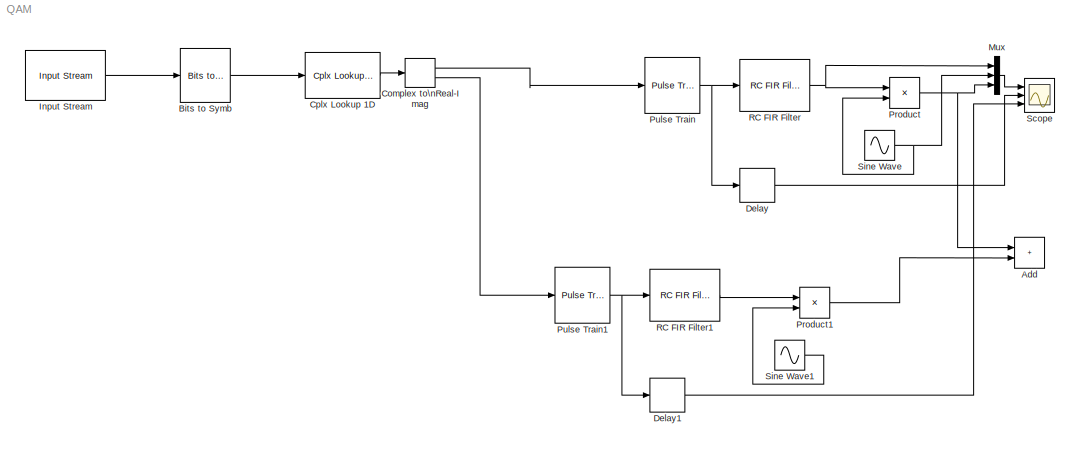
MODEL QAM
KIND model
BLOCK [Sum] Add
  IconShape = rectangular
  Ports = [2, 1]
  SID = 11
BLOCK [Reference] Bits to Symb  REF=dsp_blocks/Conversions/Bits to Symb
  Ports = [1, 1]
  RTWMemSecDataConstants = Inherit from model
  RTWMemSecDataInternal = Inherit from model
  RTWMemSecDataParameters = Inherit from model
  RTWMemSecFuncExecute = Inherit from model
  RTWMemSecFuncInitTerm = Inherit from model
  SID = 12
  SourceBlock = dsp_blocks/Conversions/Bits to Symb
BLOCK [ComplexToRealImag] Complex to\nReal-Imag
  Ports = [1, 2]
  SID = 13
BLOCK [Reference] Cplx Lookup 1D  REF=dsp_blocks/Conversions/Cplx Lookup 1D
  Ports = [1, 1]
  RTWMemSecDataConstants = Inherit from model
  RTWMemSecDataInternal = Inherit from model
  RTWMemSecDataParameters = Inherit from model
  RTWMemSecFuncExecute = Inherit from model
  RTWMemSecFuncInitTerm = Inherit from model
  SID = 14
  SourceBlock = dsp_blocks/Conversions/Cplx Lookup 1D
  table = [1 j -1 -j]
BLOCK [Delay] Delay
  DelayLength = 64
  InputPortMap = u0
  Ports = [1, 1]
  SID = 15
BLOCK [Delay] Delay1
  DelayLength = 64
  InputPortMap = u0
  Ports = [1, 1]
  SID = 16
BLOCK [Reference] Input Stream  REF=dsp_blocks/Sources//Sinks/Input Stream
  Ports = [0, 1]
  RTWMemSecDataConstants = Inherit from model
  RTWMemSecDataInternal = Inherit from model
  RTWMemSecDataParameters = Inherit from model
  RTWMemSecFuncExecute = Inherit from model
  RTWMemSecFuncInitTerm = Inherit from model
  SID = 17
  SourceBlock = dsp_blocks/Sources//Sinks/Input Stream
  fname = rand.mat
  period = 50
  width = 2
BLOCK [Mux] Mux
  DisplayOption = bar
  Inputs = 3
  Ports = [3, 1]
  SID = 18
BLOCK [Product] Product
  Ports = [2, 1]
  SID = 19
BLOCK [Product] Product1
  Ports = [2, 1]
  SID = 20
BLOCK [Reference] Pulse Train  REF=dsp_blocks/Conversions/Pulse Train
  Ports = [1, 1]
  RTWMemSecDataConstants = Inherit from model
  RTWMemSecDataInternal = Inherit from model
  RTWMemSecDataParameters = Inherit from model
  RTWMemSecFuncExecute = Inherit from model
  RTWMemSecFuncInitTerm = Inherit from model
  SID = 21
  SourceBlock = dsp_blocks/Conversions/Pulse Train
  period = 50
BLOCK [Reference] Pulse Train1  REF=dsp_blocks/Conversions/Pulse Train
  Ports = [1, 1]
  RTWMemSecDataConstants = Inherit from model
  RTWMemSecDataInternal = Inherit from model
  RTWMemSecDataParameters = Inherit from model
  RTWMemSecFuncExecute = Inherit from model
  RTWMemSecFuncInitTerm = Inherit from model
  SID = 22
  SourceBlock = dsp_blocks/Conversions/Pulse Train
  period = 50
BLOCK [Reference] RC FIR Filter  REF=dsp_blocks/Filters/RC FIR Filter
  Ports = [1, 1]
  RTWMemSecDataConstants = Inherit from model
  RTWMemSecDataInternal = Inherit from model
  RTWMemSecDataParameters = Inherit from model
  RTWMemSecFuncExecute = Inherit from model
  RTWMemSecFuncInitTerm = Inherit from model
  SID = 23
  SourceBlock = dsp_blocks/Filters/RC FIR Filter
  beta = 0.5
  filt_len = 128
  period = 50
  root = off
  win_type = on
BLOCK [Reference] RC FIR Filter1  REF=dsp_blocks/Filters/RC FIR Filter
  Ports = [1, 1]
  RTWMemSecDataConstants = Inherit from model
  RTWMemSecDataInternal = Inherit from model
  RTWMemSecDataParameters = Inherit from model
  RTWMemSecFuncExecute = Inherit from model
  RTWMemSecFuncInitTerm = Inherit from model
  SID = 24
  SourceBlock = dsp_blocks/Filters/RC FIR Filter
  beta = 0.5
  filt_len = 128
  period = 50
  root = off
  win_type = on
BLOCK [Scope] Scope
  Floating = off
  NumInputPorts = 3
  Ports = [3]
  SID = 25
  ScopeSpecificationString = Simulink.scopes.TimeScopeBlockCfg('CurrentConfiguration', extmgr.ConfigurationSet(extmgr.Configuration('Core','General UI',true),extmgr.Configuration('Core','Source UI',true),extmgr.Configuration('Sources','WiredSimulink',true),extmgr.Configuration('Visuals','Time Domain',true,'SerializedDisplays',{struct('MinYLimReal','-1.12771','MaxYLimReal','1.07575','YLabelReal','','MinYLimMag','0.00000','MaxY...<+2638ch>
BLOCK [Sin] Sine Wave
  Frequency = 2*pi*0.1
  Phase = pi/2
  Ports = [0, 1]
  SID = 26
  SampleTime = 0
BLOCK [Sin] Sine Wave1
  Frequency = 2*pi*0.1
  Ports = [0, 1]
  SID = 27
  SampleTime = 0
LINE Bits to Symb:1 -> Cplx Lookup 1D:1
LINE Complex to\nReal-Imag:1 -> Pulse Train:1
LINE Complex to\nReal-Imag:2 -> Pulse Train1:1
LINE Cplx Lookup 1D:1 -> Complex to\nReal-Imag:1
LINE Delay1:1 -> Scope:3
LINE Delay:1 -> Scope:2
LINE Input Stream:1 -> Bits to Symb:1
LINE Mux:1 -> Scope:1
LINE Product1:1 -> Add:2
NET Product:1 -> Add:1, Mux:3
NET Pulse Train1:1 -> Delay1:1, RC FIR Filter1:1
NET Pulse Train:1 -> Delay:1, RC FIR Filter:1
LINE RC FIR Filter1:1 -> Product1:1
NET RC FIR Filter:1 -> Mux:1, Product:1
LINE Sine Wave1:1 -> Product1:2
NET Sine Wave:1 -> Mux:2, Product:2
note: NET lines group one-source signal fan-out (src -> all destinations, sorted); 1:1 wires keep LINE
